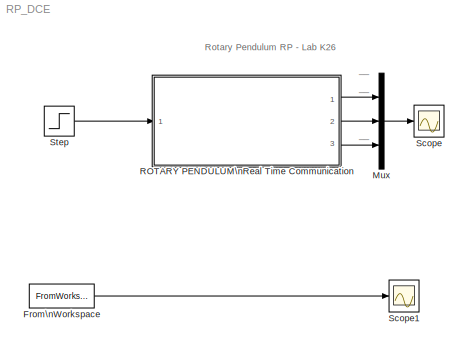
MODEL RP_DCE
KIND model
BLOCK [FromWorkspace] From\nWorkspace
  SID = 19
  SampleTime = 0
  VariableName = phim_struct
  ZeroCross = on
BLOCK [Mux] Mux
  DisplayOption = bar
  Inputs = 3
  Ports = [3, 1]
  SID = 1
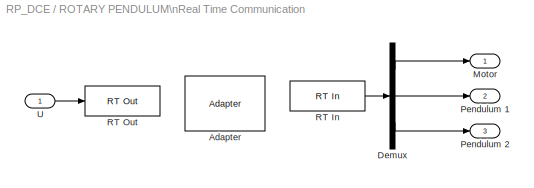
BLOCK [SubSystem] ROTARY PENDULUM\nReal Time Communication
  Ports = [1, 3]
  RequestExecContextInheritance = off
  SID = 2
BLOCK [Reference] ROTARY PENDULUM\nReal Time Communication/Adapter  REF=rtlib/Adapter
  AttributesFormatString = Humusoft\\nMF614 (auto)
  DriverAddress = 4294967295
  DriverName = Humusoft/MF614
  DriverOptions = 0
  FunctionWithSeparateData = off
  Ports = []
  RTWMemSecDataConstants = Inherit from model
  RTWMemSecDataInternal = Inherit from model
  RTWMemSecDataParameters = Inherit from model
  RTWMemSecFuncExecute = Inherit from model
  RTWMemSecFuncInitTerm = Inherit from model
  SID = 4
  ShowPortLabels = FromPortIcon
  SourceBlock = rtlib/Adapter
  SourceType = RT Adapter
  SystemSampleTime = -1
BLOCK [Demux] ROTARY PENDULUM\nReal Time Communication/Demux
  Outputs = 3
  Ports = [1, 3]
  SID = 5
BLOCK [Outport] ROTARY PENDULUM\nReal Time Communication/Motor
  IconDisplay = Port number
  SID = 8
BLOCK [Outport] ROTARY PENDULUM\nReal Time Communication/Pendulum 1
  IconDisplay = Port number
  Port = 2
  SID = 9
BLOCK [Outport] ROTARY PENDULUM\nReal Time Communication/Pendulum 2
  IconDisplay = Port number
  Port = 3
  SID = 10
BLOCK [Reference] ROTARY PENDULUM\nReal Time Communication/RT In  REF=rtlib/RT In
  AIORange = 0 to 5 V
  AIOUnits = Volts
  Adapter = Adapter
  CIEdge = rising
  CIGate = none
  CIReset = never
  Channels = [2,4,1]
  DIOMode = Bit
  EIFilterFrequency = inf
  EIIndexPulse = falling edge index
  EIQuadrature = quadruple
  IOClass = Encoder Input
  MaxMissedTicks = 100
  OIOParameters = []
  Ports = [0, 1]
  SID = 6
  SLDataType = double
  SampleTime = Ts
  ShowMissedTicks = off
  SourceBlock = rtlib/RT In
  SourceType = RT Input
  YieldWhenWaiting = on
BLOCK [Reference] ROTARY PENDULUM\nReal Time Communication/RT Out  REF=rtlib/RT Out
  AIORange = -10 to 10 V
  AIOUnits = Normalized bipolar
  Adapter = Adapter
  Channels = 1
  DIOMode = Bit
  FinalValue = [U_final]
  IOClass = Analog Output
  InitialValue = [U_init]
  MaxMissedTicks = 100
  OIOParameters = []
  Ports = [1]
  SID = 7
  SampleTime = Ts
  ShowMissedTicks = off
  SourceBlock = rtlib/RT Out
  SourceType = RT Output
  YieldWhenWaiting = on
BLOCK [Inport] ROTARY PENDULUM\nReal Time Communication/U
  IconDisplay = Port number
  SID = 3
BLOCK [Scope] Scope
  Floating = off
  MaxDataPoints = 50000
  NumInputPorts = 1
  Ports = [1]
  SID = 11
  SampleTime = 0
  SaveName = ty
  SaveToWorkspace = on
  ShowLegends = off
  TimeRange = 5
  YMax = 8000
  YMin = -1000
  ZoomMode = yonly
BLOCK [Scope] Scope1
  Floating = off
  MaxDataPoints = 50000
  NumInputPorts = 1
  Ports = [1]
  SID = 20
  SampleTime = 0
  SaveName = ty1
  SaveToWorkspace = on
  ShowLegends = off
  TimeRange = 5
  YMax = 8000
  YMin = -1000
  ZoomMode = yonly
BLOCK [Step] Step
  After = 0
  Before = 0.2
  SID = 12
  SampleTime = 0
ANNOTATION (root): Rotary Pendulum RP - Lab K26
ANNOTATION (root): __
LINE From\nWorkspace:1 -> Scope1:1
LINE Mux:1 -> Scope:1
LINE ROTARY PENDULUM\nReal Time Communication/Demux:1 -> ROTARY PENDULUM\nReal Time Communication/Motor:1
LINE ROTARY PENDULUM\nReal Time Communication/Demux:2 -> ROTARY PENDULUM\nReal Time Communication/Pendulum 1:1
LINE ROTARY PENDULUM\nReal Time Communication/Demux:3 -> ROTARY PENDULUM\nReal Time Communication/Pendulum 2:1
LINE ROTARY PENDULUM\nReal Time Communication/RT In:1 -> ROTARY PENDULUM\nReal Time Communication/Demux:1
LINE ROTARY PENDULUM\nReal Time Communication/U:1 -> ROTARY PENDULUM\nReal Time Communication/RT Out:1
LINE ROTARY PENDULUM\nReal Time Communication:1 -> Mux:1
LINE ROTARY PENDULUM\nReal Time Communication:2 -> Mux:2
LINE ROTARY PENDULUM\nReal Time Communication:3 -> Mux:3
LINE Step:1 -> ROTARY PENDULUM\nReal Time Communication:1
